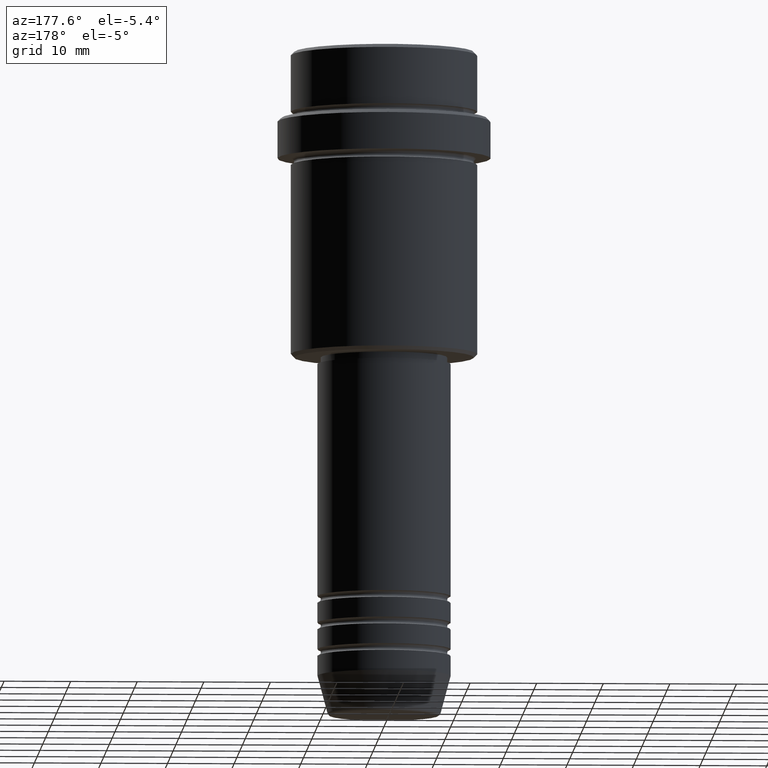
[diagram: clean part render]
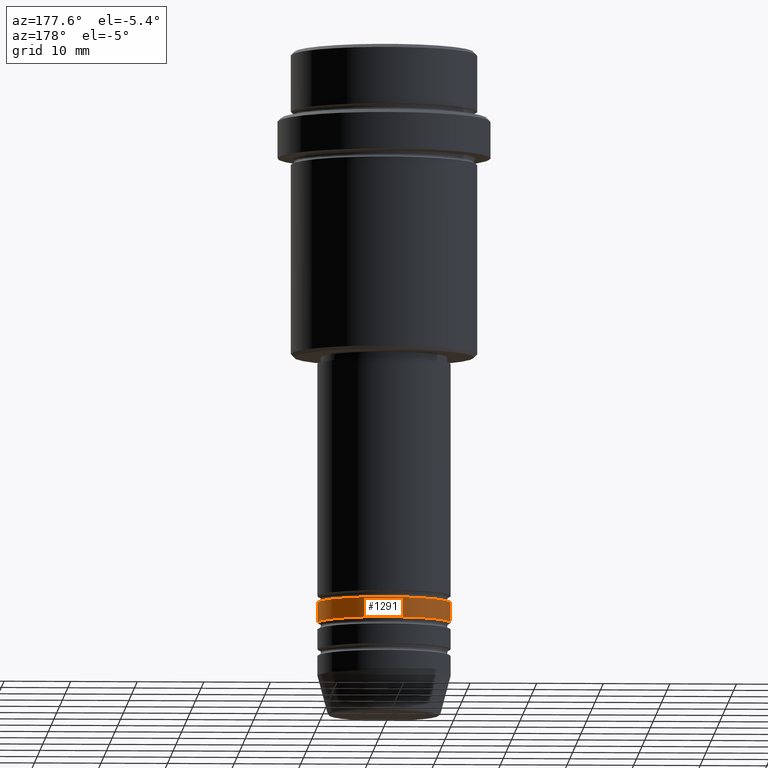
[diagram: same view with one face highlighted and labeled with its STEP entity id]
A machine part, auxiliary view. The second image highlights one B-rep face of the part: STEP entity #1291.
In plain terms, the highlighted cylindrical surface (partial cylindrical patch) has radius 10 mm, axis along (-0, -0, 1).
Its self-contained STEP definition (entity closure, byte-faithful):
#2 = DIRECTION ( 'NONE',  ( -0.000000000000000000, -0.000000000000000000, 1.000000000000000000 ) ) ;
#70 = CARTESIAN_POINT ( 'NONE',  ( 0.000000000000000000, 0.000000000000000000, -85.99999999999988631 ) ) ;
#105 = VERTEX_POINT ( 'NONE', #262 ) ;
#108 = EDGE_CURVE ( 'NONE', #1185, #606, #1148, .T. ) ;
#145 = DIRECTION ( 'NONE',  ( -0.000000000000000000, -0.000000000000000000, 1.000000000000000000 ) ) ;
#151 = ORIENTED_EDGE ( 'NONE', *, *, #700, .T. ) ;
#165 = DIRECTION ( 'NONE',  ( -0.000000000000000000, -0.000000000000000000, 1.000000000000000000 ) ) ;
#166 = CARTESIAN_POINT ( 'NONE',  ( -10.00000000000000000, 1.224646799147353256E-15, 0.000000000000000000 ) ) ;
#177 = VECTOR ( 'NONE', #165, 1000.000000000000000 ) ;
#220 = CARTESIAN_POINT ( 'NONE',  ( 0.000000000000000000, 0.000000000000000000, -82.99999999999988631 ) ) ;
#261 = CARTESIAN_POINT ( 'NONE',  ( 10.00000000000000000, 0.000000000000000000, -85.99999999999988631 ) ) ;
#262 = CARTESIAN_POINT ( 'NONE',  ( 10.00000000000000000, 0.000000000000000000, -82.99999999999988631 ) ) ;
#325 = ORIENTED_EDGE ( 'NONE', *, *, #449, .F. ) ;
#327 = DIRECTION ( 'NONE',  ( 1.000000000000000000, 0.000000000000000000, 0.000000000000000000 ) ) ;
#370 = EDGE_CURVE ( 'NONE', #105, #606, #524, .T. ) ;
#373 = CYLINDRICAL_SURFACE ( 'NONE', #479, 10.00000000000000000 ) ;
#449 = EDGE_CURVE ( 'NONE', #541, #105, #932, .T. ) ;
#450 = EDGE_LOOP ( 'NONE', ( #151, #1094, #1034, #325 ) ) ;
#471 = DIRECTION ( 'NONE',  ( 1.000000000000000000, 0.000000000000000000, 0.000000000000000000 ) ) ;
#479 = AXIS2_PLACEMENT_3D ( 'NONE', #483, #145, #471 ) ;
#483 = CARTESIAN_POINT ( 'NONE',  ( 0.000000000000000000, 0.000000000000000000, 0.000000000000000000 ) ) ;
#508 = DIRECTION ( 'NONE',  ( -0.000000000000000000, -0.000000000000000000, 1.000000000000000000 ) ) ;
#524 = CIRCLE ( 'NONE', #1142, 10.00000000000000000 ) ;
#525 = CIRCLE ( 'NONE', #661, 10.00000000000000000 ) ;
#541 = VERTEX_POINT ( 'NONE', #261 ) ;
#605 = DIRECTION ( 'NONE',  ( -0.000000000000000000, -0.000000000000000000, 1.000000000000000000 ) ) ;
#606 = VERTEX_POINT ( 'NONE', #970 ) ;
#661 = AXIS2_PLACEMENT_3D ( 'NONE', #70, #508, #949 ) ;
#700 = EDGE_CURVE ( 'NONE', #541, #1185, #525, .T. ) ;
#932 = LINE ( 'NONE', #1355, #177 ) ;
#949 = DIRECTION ( 'NONE',  ( 1.000000000000000000, 0.000000000000000000, 0.000000000000000000 ) ) ;
#970 = CARTESIAN_POINT ( 'NONE',  ( -10.00000000000000000, 1.224646799147353256E-15, -82.99999999999988631 ) ) ;
#1034 = ORIENTED_EDGE ( 'NONE', *, *, #370, .F. ) ;
#1035 = FACE_OUTER_BOUND ( 'NONE', #450, .T. ) ;
#1094 = ORIENTED_EDGE ( 'NONE', *, *, #108, .T. ) ;
#1104 = CARTESIAN_POINT ( 'NONE',  ( -10.00000000000000000, 1.224646799147353256E-15, -85.99999999999988631 ) ) ;
#1142 = AXIS2_PLACEMENT_3D ( 'NONE', #220, #2, #327 ) ;
#1148 = LINE ( 'NONE', #166, #1414 ) ;
#1185 = VERTEX_POINT ( 'NONE', #1104 ) ;
#1291 = ADVANCED_FACE ( 'NONE', ( #1035 ), #373, .T. ) ;
#1355 = CARTESIAN_POINT ( 'NONE',  ( 10.00000000000000000, 0.000000000000000000, 0.000000000000000000 ) ) ;
#1414 = VECTOR ( 'NONE', #605, 1000.000000000000000 ) ;